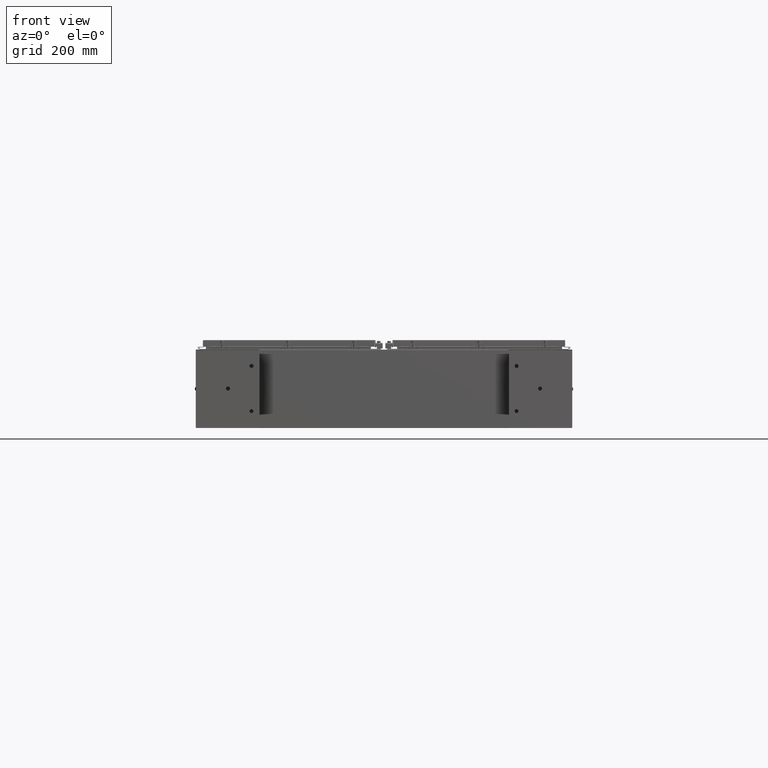
[diagram: clean part render]
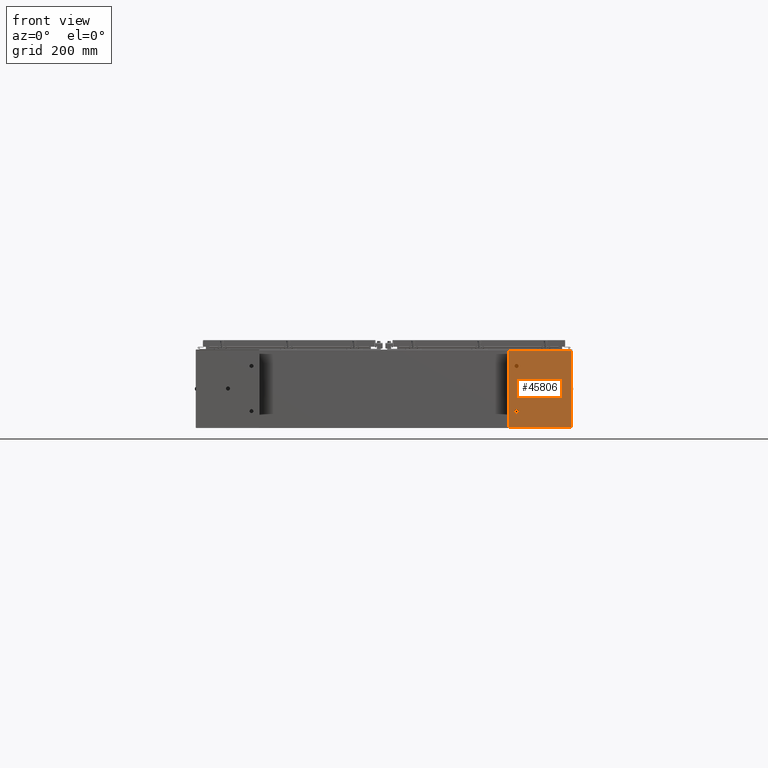
[diagram: same view with one face highlighted and labeled with its STEP entity id]
A machine part, front view. The second image highlights one B-rep face of the part: STEP entity #45806.
In plain terms, the highlighted planar face has unit normal (-0, -1, -0).
Its self-contained STEP definition (entity closure, byte-faithful):
#394 = AXIS2_PLACEMENT_3D ( 'NONE', #16342, #53210, #21665 ) ;
#894 = CARTESIAN_POINT ( 'NONE',  ( 0.2500000000000000000, 2.365953031994733000E-029, -0.1049999999999990100 ) ) ;
#916 = VERTEX_POINT ( 'NONE', #1473 ) ;
#939 = CIRCLE ( 'NONE', #31177, 0.2499999999999998100 ) ;
#1250 = CARTESIAN_POINT ( 'NONE',  ( -4.879000000000002200, -4.000000000000000900, -0.1049999999999378200 ) ) ;
#1380 = EDGE_CURVE ( 'NONE', #7161, #67942, #61954, .T. ) ;
#1473 = CARTESIAN_POINT ( 'NONE',  ( 2.628999999999993800, -2.999999999999997300, -0.1049999999999290800 ) ) ;
#2515 = ORIENTED_EDGE ( 'NONE', *, *, #17620, .F. ) ;
#3570 = DIRECTION ( 'NONE',  ( -1.000000000000000000, -9.466330862652141700E-029, 0.0000000000000000000 ) ) ;
#3577 = VERTEX_POINT ( 'NONE', #17918 ) ;
#3902 = AXIS2_PLACEMENT_3D ( 'NONE', #57643, #26089, #62941 ) ;
#4242 = CIRCLE ( 'NONE', #17293, 0.2499999999999998100 ) ;
#4293 = CARTESIAN_POINT ( 'NONE',  ( 4.878999999999996000, 3.999999999999996900, -0.1050000000000689500 ) ) ;
#6604 = DIRECTION ( 'NONE',  ( -0.0000000000000000000, -1.198498701752371100E-031, 1.000000000000000000 ) ) ;
#7161 = VERTEX_POINT ( 'NONE', #65554 ) ;
#7894 = EDGE_CURVE ( 'NONE', #32878, #19961, #16186, .T. ) ;
#7928 = ORIENTED_EDGE ( 'NONE', *, *, #57546, .T. ) ;
#8401 = AXIS2_PLACEMENT_3D ( 'NONE', #18839, #61006, #29468 ) ;
#8704 = LINE ( 'NONE', #18308, #49031 ) ;
#10379 = EDGE_LOOP ( 'NONE', ( #62914, #7928 ) ) ;
#10459 = LINE ( 'NONE', #26514, #21117 ) ;
#11525 = DIRECTION ( 'NONE',  ( -0.0000000000000000000, -1.198498701752371100E-031, 1.000000000000000000 ) ) ;
#12393 = ORIENTED_EDGE ( 'NONE', *, *, #13951, .T. ) ;
#13951 = EDGE_CURVE ( 'NONE', #67942, #7161, #40532, .T. ) ;
#13996 = CARTESIAN_POINT ( 'NONE',  ( -4.879000000000002200, -4.000000000000000900, -0.1049999999999378200 ) ) ;
#14174 = EDGE_CURVE ( 'NONE', #3577, #39791, #939, .T. ) ;
#14545 = VECTOR ( 'NONE', #45447, 39.37007874015748100 ) ;
#16186 = LINE ( 'NONE', #40174, #14545 ) ;
#16342 = CARTESIAN_POINT ( 'NONE',  ( 2.878999999999993300, -2.999999999999997300, -0.1049999999999290800 ) ) ;
#17293 = AXIS2_PLACEMENT_3D ( 'NONE', #38143, #6604, #43440 ) ;
#17549 = ORIENTED_EDGE ( 'NONE', *, *, #1380, .T. ) ;
#17620 = EDGE_CURVE ( 'NONE', #32526, #27979, #10459, .T. ) ;
#17918 = CARTESIAN_POINT ( 'NONE',  ( -2.629000000000001800, -2.999999999999999600, -0.1049999999999290800 ) ) ;
#18308 = CARTESIAN_POINT ( 'NONE',  ( -4.879000000000002200, 4.000000000000000900, -0.1049999999999990100 ) ) ;
#18632 = EDGE_CURVE ( 'NONE', #27979, #32878, #8704, .T. ) ;
#18839 = CARTESIAN_POINT ( 'NONE',  ( 4.878999999999996000, 3.999999999999996900, -0.1050000000000689500 ) ) ;
#19961 = VERTEX_POINT ( 'NONE', #13996 ) ;
#20802 = CARTESIAN_POINT ( 'NONE',  ( 4.878999999999997800, -4.000000000000000900, -0.1050000000000077500 ) ) ;
#21117 = VECTOR ( 'NONE', #31834, 39.37007874015748100 ) ;
#21235 = DIRECTION ( 'NONE',  ( -0.0000000000000000000, -1.198498701752371100E-031, 1.000000000000000000 ) ) ;
#21665 = DIRECTION ( 'NONE',  ( -1.000000000000000000, 0.0000000000000000000, 0.0000000000000000000 ) ) ;
#25832 = ORIENTED_EDGE ( 'NONE', *, *, #45202, .F. ) ;
#25939 = EDGE_CURVE ( 'NONE', #55386, #916, #28630, .T. ) ;
#26089 = DIRECTION ( 'NONE',  ( 0.0000000000000000000, 1.198498701752371100E-031, -1.000000000000000000 ) ) ;
#26514 = CARTESIAN_POINT ( 'NONE',  ( 4.878999999999997800, -4.000000000000000900, -0.1050000000000077500 ) ) ;
#27746 = FACE_BOUND ( 'NONE', #10379, .T. ) ;
#27979 = VERTEX_POINT ( 'NONE', #4293 ) ;
#28630 = CIRCLE ( 'NONE', #3902, 0.2499999999999998100 ) ;
#29468 = DIRECTION ( 'NONE',  ( -1.000000000000000000, -9.466330862652141700E-029, 0.0000000000000000000 ) ) ;
#31177 = AXIS2_PLACEMENT_3D ( 'NONE', #52780, #21235, #58108 ) ;
#31834 = DIRECTION ( 'NONE',  ( 9.466330862652141700E-029, 1.000000000000000000, -1.198498701752819500E-031 ) ) ;
#32526 = VERTEX_POINT ( 'NONE', #20802 ) ;
#32878 = VERTEX_POINT ( 'NONE', #52289 ) ;
#34425 = VECTOR ( 'NONE', #64754, 39.37007874015748100 ) ;
#34652 = EDGE_CURVE ( 'NONE', #916, #55386, #54791, .T. ) ;
#35103 = DIRECTION ( 'NONE',  ( -0.0000000000000000000, -1.198498701752371100E-031, 1.000000000000000000 ) ) ;
#35887 = ORIENTED_EDGE ( 'NONE', *, *, #18632, .F. ) ;
#36313 = ORIENTED_EDGE ( 'NONE', *, *, #25939, .F. ) ;
#38143 = CARTESIAN_POINT ( 'NONE',  ( -2.879000000000001800, -2.999999999999999600, -0.1049999999999290800 ) ) ;
#38568 = EDGE_LOOP ( 'NONE', ( #12393, #17549 ) ) ;
#38975 = ORIENTED_EDGE ( 'NONE', *, *, #34652, .F. ) ;
#39341 = DIRECTION ( 'NONE',  ( -1.000000000000000000, -9.466330862652141700E-029, 0.0000000000000000000 ) ) ;
#39791 = VERTEX_POINT ( 'NONE', #65097 ) ;
#39882 = PLANE ( 'NONE',  #8401 ) ;
#40174 = CARTESIAN_POINT ( 'NONE',  ( -4.879000000000002200, -4.000000000000000900, -0.1049999999999378200 ) ) ;
#40532 = CIRCLE ( 'NONE', #43083, 0.2500000000000000000 ) ;
#43083 = AXIS2_PLACEMENT_3D ( 'NONE', #66656, #35103, #3570 ) ;
#43440 = DIRECTION ( 'NONE',  ( -1.000000000000000000, 0.0000000000000000000, 0.0000000000000000000 ) ) ;
#45202 = EDGE_CURVE ( 'NONE', #19961, #32526, #62449, .T. ) ;
#45447 = DIRECTION ( 'NONE',  ( -9.466330862652141700E-029, -1.000000000000000000, 1.198498701752819500E-031 ) ) ;
#45806 = ADVANCED_FACE ( 'NONE', ( #68118, #55765, #27746, #54107 ), #39882, .T. ) ;
#49031 = VECTOR ( 'NONE', #39341, 39.37007874015748100 ) ;
#49732 = EDGE_LOOP ( 'NONE', ( #36313, #38975 ) ) ;
#52289 = CARTESIAN_POINT ( 'NONE',  ( -4.879000000000002200, 4.000000000000000900, -0.1049999999999990100 ) ) ;
#52780 = CARTESIAN_POINT ( 'NONE',  ( -2.879000000000001800, -2.999999999999999600, -0.1049999999999290800 ) ) ;
#53172 = CARTESIAN_POINT ( 'NONE',  ( 3.128999999999993300, -2.999999999999997300, -0.1049999999999290800 ) ) ;
#53210 = DIRECTION ( 'NONE',  ( 0.0000000000000000000, 1.198498701752371100E-031, -1.000000000000000000 ) ) ;
#54107 = FACE_BOUND ( 'NONE', #49732, .T. ) ;
#54791 = CIRCLE ( 'NONE', #394, 0.2499999999999998100 ) ;
#55386 = VERTEX_POINT ( 'NONE', #53172 ) ;
#55765 = FACE_BOUND ( 'NONE', #38568, .T. ) ;
#57546 = EDGE_CURVE ( 'NONE', #39791, #3577, #4242, .T. ) ;
#57643 = CARTESIAN_POINT ( 'NONE',  ( 2.878999999999993300, -2.999999999999997300, -0.1049999999999290800 ) ) ;
#58108 = DIRECTION ( 'NONE',  ( -1.000000000000000000, 0.0000000000000000000, 0.0000000000000000000 ) ) ;
#58329 = DIRECTION ( 'NONE',  ( -1.000000000000000000, -9.466330862652141700E-029, 0.0000000000000000000 ) ) ;
#58535 = EDGE_LOOP ( 'NONE', ( #2515, #25832, #68154, #35887 ) ) ;
#59630 = CARTESIAN_POINT ( 'NONE',  ( 0.0000000000000000000, 0.0000000000000000000, -0.1049999999999990100 ) ) ;
#61006 = DIRECTION ( 'NONE',  ( -1.134538524924699500E-059, 1.198498701752371100E-031, -1.000000000000000000 ) ) ;
#61954 = CIRCLE ( 'NONE', #67328, 0.2500000000000000000 ) ;
#62449 = LINE ( 'NONE', #1250, #34425 ) ;
#62914 = ORIENTED_EDGE ( 'NONE', *, *, #14174, .T. ) ;
#62941 = DIRECTION ( 'NONE',  ( -1.000000000000000000, 0.0000000000000000000, 0.0000000000000000000 ) ) ;
#64754 = DIRECTION ( 'NONE',  ( 1.000000000000000000, 9.466330862652141700E-029, 0.0000000000000000000 ) ) ;
#65097 = CARTESIAN_POINT ( 'NONE',  ( -3.129000000000001300, -2.999999999999999600, -0.1049999999999290800 ) ) ;
#65554 = CARTESIAN_POINT ( 'NONE',  ( -0.2500000000000000000, 3.061616997866015800E-017, -0.1049999999999990100 ) ) ;
#66656 = CARTESIAN_POINT ( 'NONE',  ( 0.0000000000000000000, 0.0000000000000000000, -0.1049999999999990100 ) ) ;
#67328 = AXIS2_PLACEMENT_3D ( 'NONE', #59630, #11525, #58329 ) ;
#67942 = VERTEX_POINT ( 'NONE', #894 ) ;
#68118 = FACE_OUTER_BOUND ( 'NONE', #58535, .T. ) ;
#68154 = ORIENTED_EDGE ( 'NONE', *, *, #7894, .F. ) ;